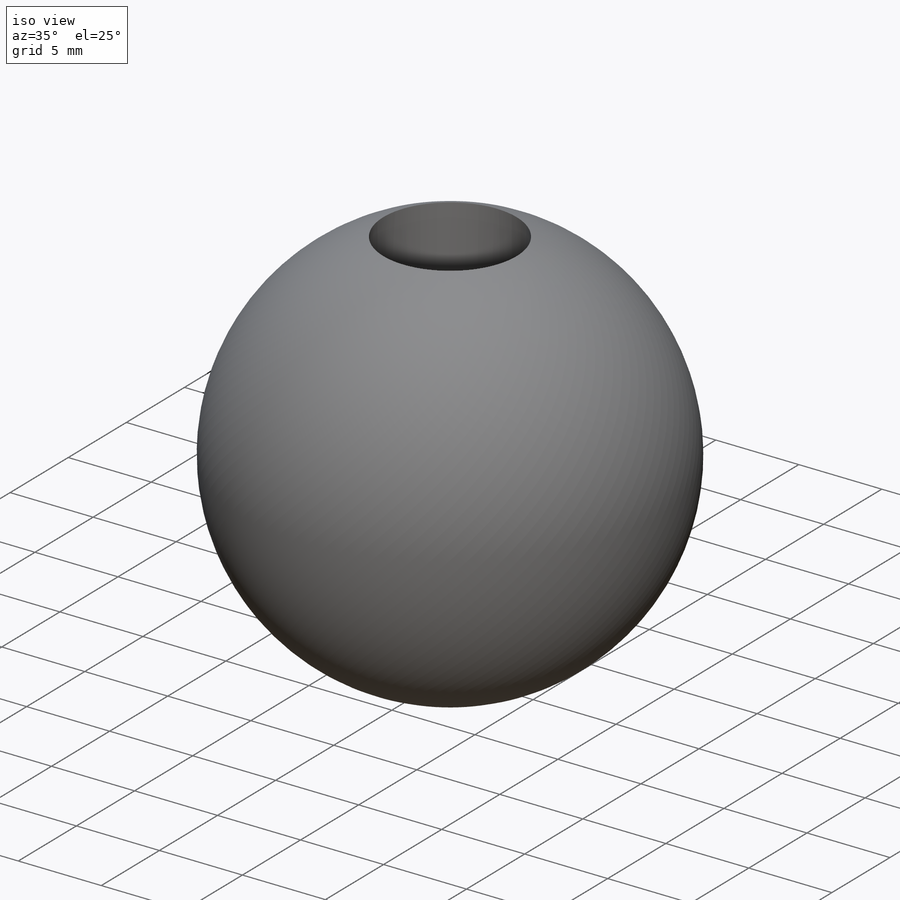
[diagram: iso view]
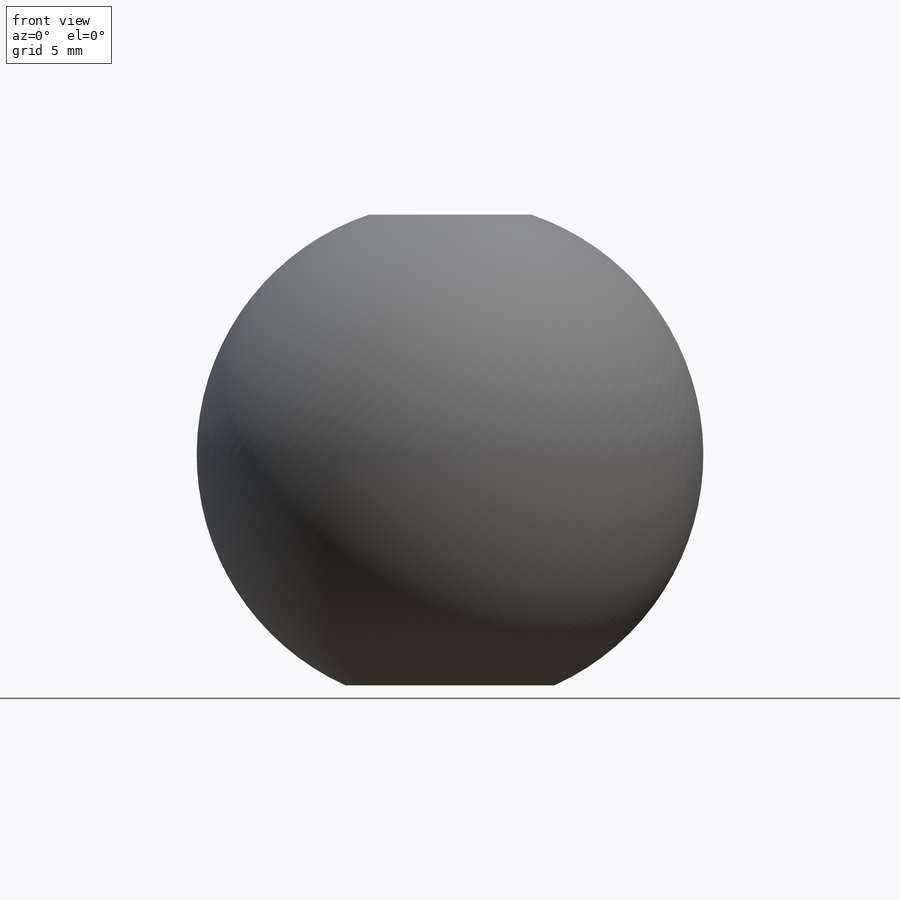
[diagram: front view]
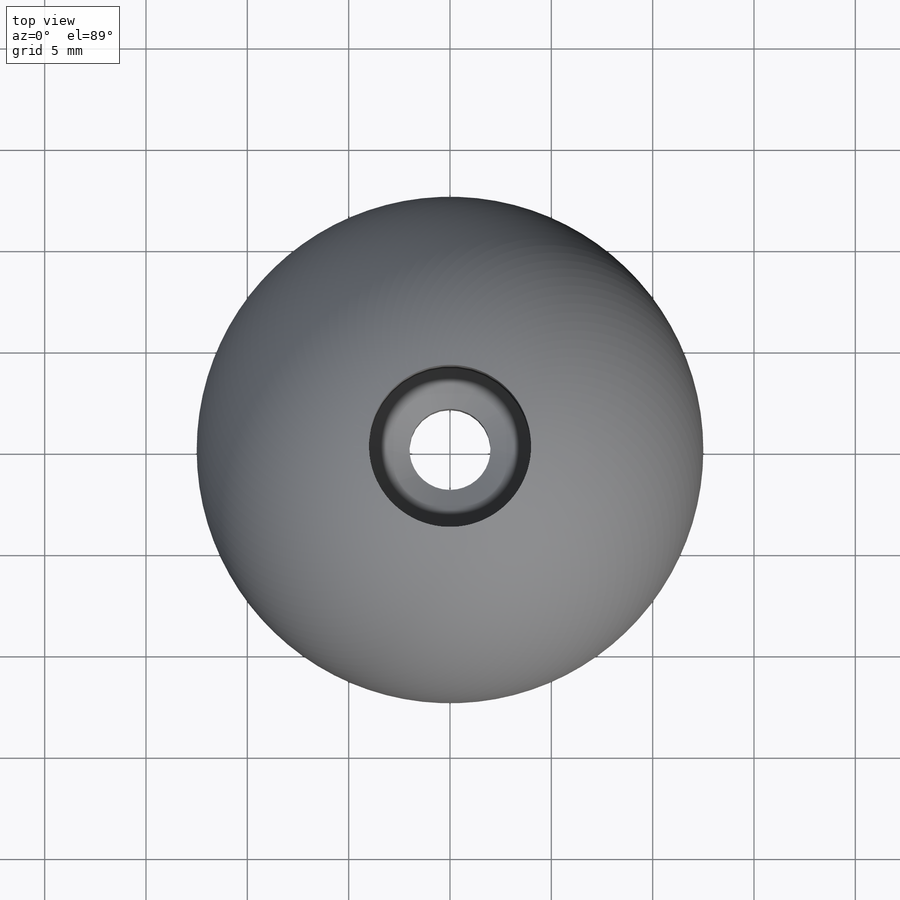
[diagram: top view]
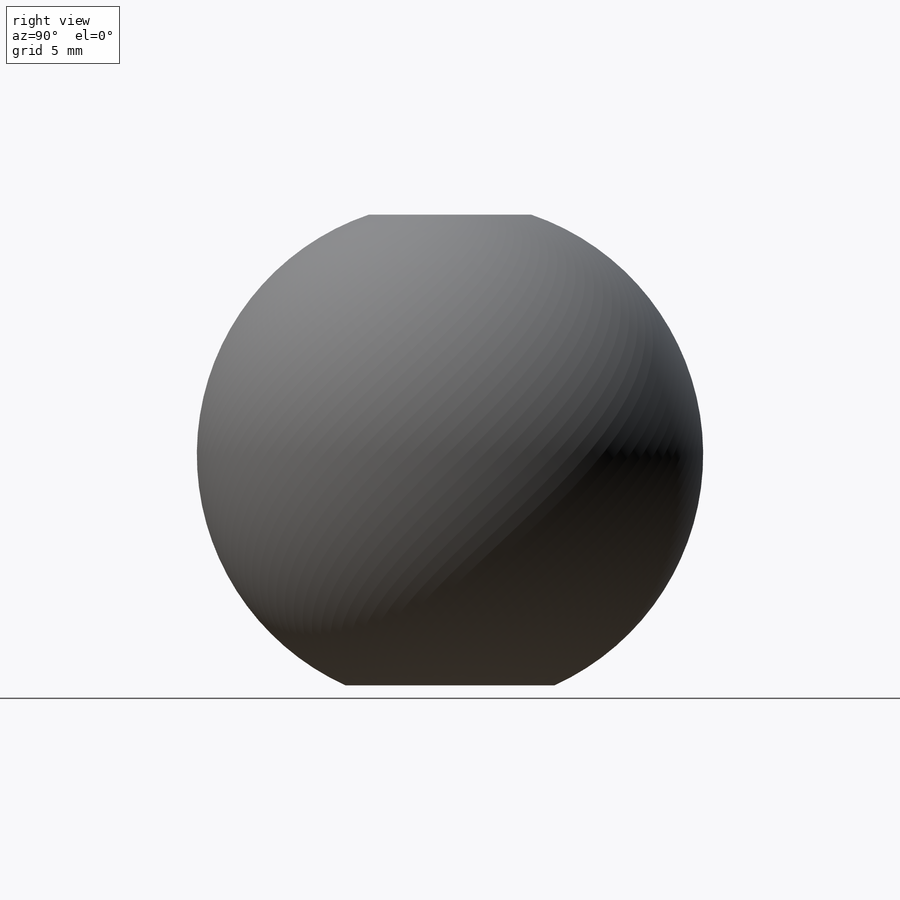
[diagram: right view]
SOLIDWORKS PART (.sldprt)
format: sldprt  version: not decoded by parser v0  size: 491,008 bytes
history: native  units: mm
features: plane x6, sketch x4, revolve x2, cut_extrude x2, mirror x2, material x1 (+9 scaffold rows collapsed)
feature tree (26):
  scaffold x9  (default folders/planes/origin — collapsed)
  material  "Material <nicht festgelegt>"
  plane  "Vorne"
  plane  "Oben"
  plane  "Rechts"
  sketch  "Skizze1"  dims[D1=12.5mm]
  revolve  "Rotation1"  Angle=360deg
  sketch  "Skizze3"  dims[D1=8.0mm]
  cut_extrude  "Schnitt-Linear austragen1"  Depth=40mm
  sketch  "Skizze5"  dims[c1.D1=4.3mm c1.D2=~3.396938mm c2.D2=59.0deg c2.D3=10.0mm c2.D4=2.0mm]
  revolve  "Rotation2"  Angle=360deg
  mirror  "Spiegeln1"
  plane  "Flexion"
  plane  "Extension"
  mirror  "Achse2"
  plane  "Lateral"
  sketch  "Skizze6"  dims[D1=10.3mm]
  cut_extrude  "Schnitt-Linear austragen2"  Depth=2mm
decode coverage: 8 of 10 modeling features carry decoded parameters
note: ~ marks probable driven/reference dimensions
note: suppression state not decoded; provenance and decode notes live in map.json
